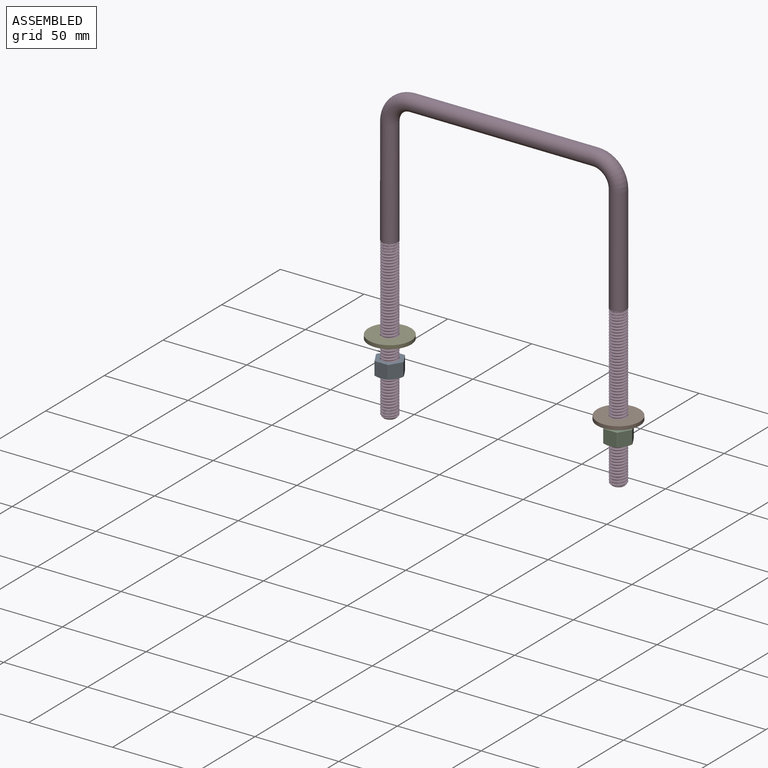
[diagram: assembled view]
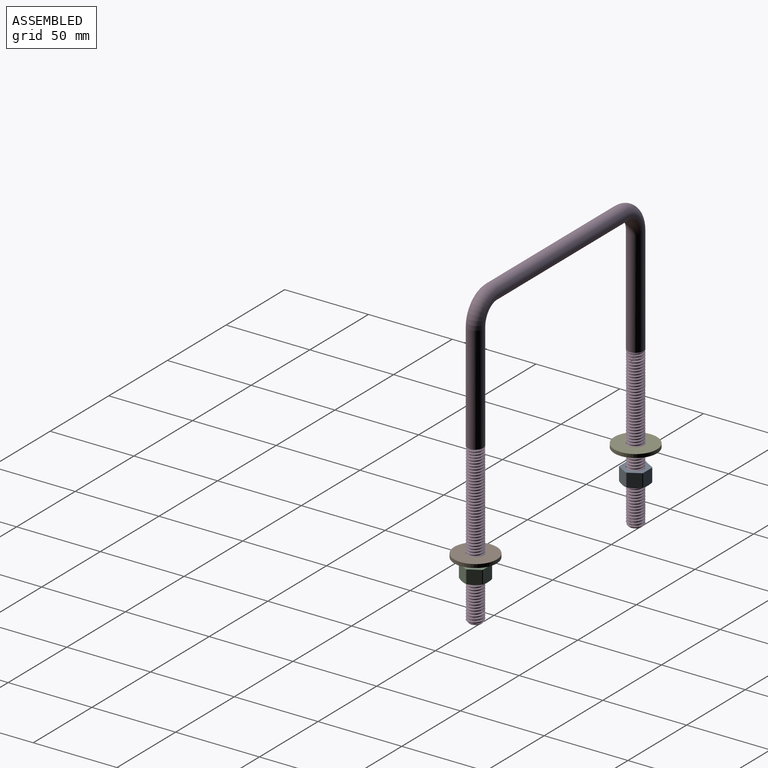
[diagram: assembled view, second angle]
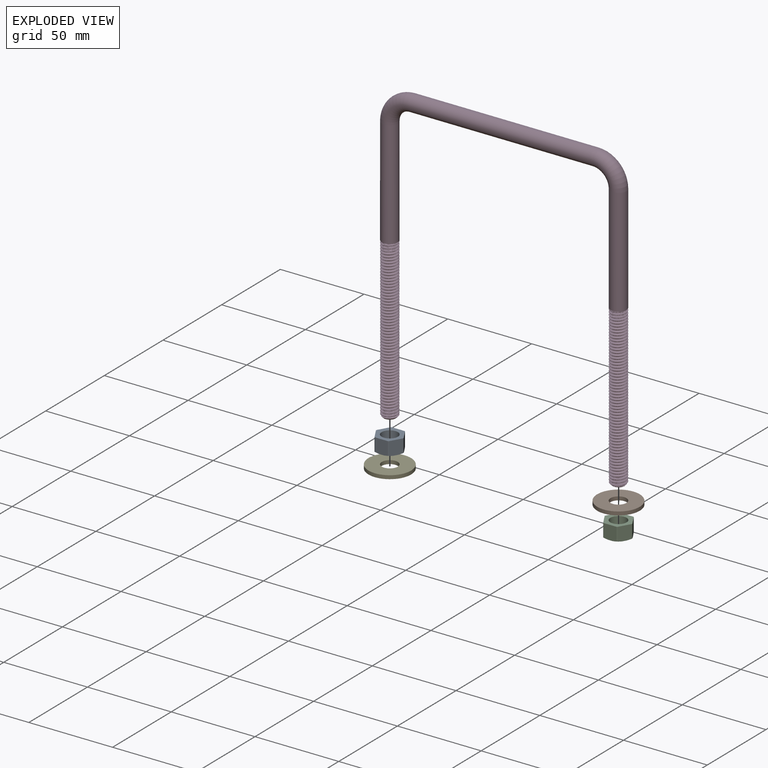
[diagram: exploded view]
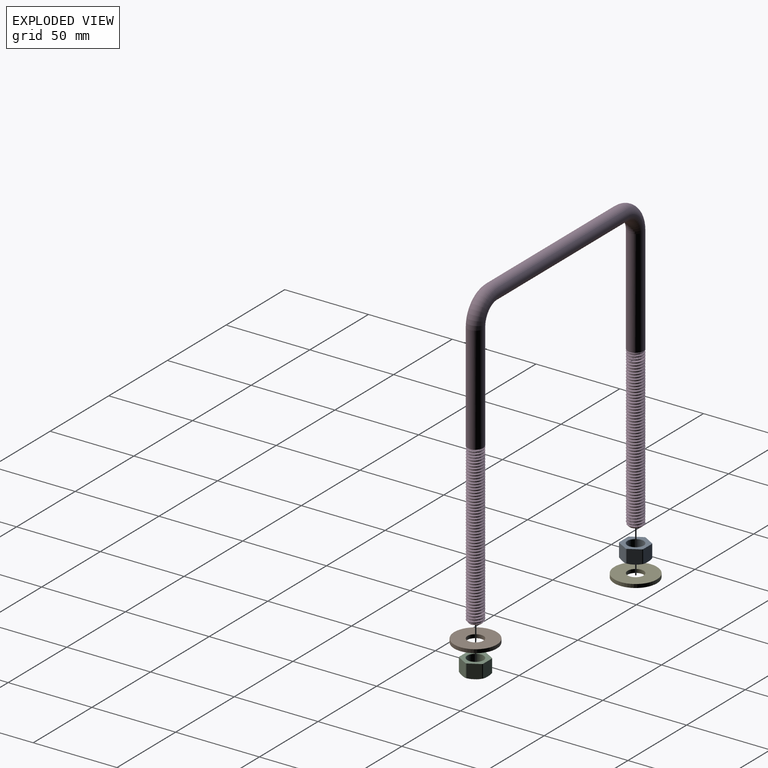
[diagram: exploded view, second angle]
ASSEMBLY  parts=5 mates=4
PART A: 23 faces, bbox 16.5x8.6x16.2 mm
  f0: cone r=4.79mm half-angle=45deg, axis (0,1,0), area 6.9mm2, adj f2,f3
  f1: cone r=4.95mm half-angle=45deg, axis (0,-1,0), area 6.9mm2, adj f2,f4
  f2: cylinder r=4.79mm len=9.58mm, axis (0,-1,0), area 241.2mm2, adj f0,f1
  f3: plane 14.53x14.3mm, normal (0,1,0), area 87.8mm2, adj f0,f5,f6,f7,f8,f9,f10,f12
  f4: plane 16.26x14.3mm, normal (0,-1,0), area 100.1mm2, adj f1,f5,f6,f7,f8,f9,f10,f11
  f5: plane 8.58x6.95mm, normal (0.87,0,-0.5), area 63.6mm2, adj f3,f4,f11,f12,f21,f22
  f6: plane 8.58x7.98mm, normal (0,0,-1), area 63.6mm2, adj f3,f4,f19,f20,f21,f22
  f7: plane 8.58x6.95mm, normal (-0.87,0,-0.5), area 63.6mm2, adj f3,f4,f17,f18,f19,f20
  f8: plane 8.58x6.95mm, normal (-0.87,0,0.5), area 63.6mm2, adj f3,f4,f15,f16,f17,f18
  f9: plane 8.58x7.98mm, normal (0,0,1), area 63.6mm2, adj f3,f4,f13,f14,f15,f16
  f10: plane 8.58x6.95mm, normal (0.87,0,0.5), area 63.6mm2, adj f3,f4,f11,f12,f13,f14
  f11: cylinder r=8.13mm len=7.93mm, axis (0,1,0), area 3.6mm2, adj f4,f5,f10,f12
  f12: cone r=7.27mm half-angle=65deg, axis (0,-1,0), area 2.7mm2, adj f3,f5,f10,f11
  f13: cylinder r=8.13mm len=7.93mm, axis (0,1,0), area 3.6mm2, adj f4,f9,f10,f14
  f14: cone r=7.27mm half-angle=65deg, axis (0,-1,0), area 2.7mm2, adj f3,f9,f10,f13
  f15: cylinder r=8.13mm len=7.93mm, axis (0,1,0), area 3.6mm2, adj f4,f8,f9,f16
  f16: cone r=7.27mm half-angle=65deg, axis (0,-1,0), area 2.7mm2, adj f3,f8,f9,f15
  f17: cylinder r=8.13mm len=7.93mm, axis (0,1,0), area 3.6mm2, adj f4,f7,f8,f18
  f18: cone r=7.27mm half-angle=65deg, axis (0,-1,0), area 2.7mm2, adj f3,f7,f8,f17
  f19: cylinder r=8.13mm len=7.93mm, axis (0,1,0), area 3.6mm2, adj f4,f6,f7,f20
  f20: cone r=7.27mm half-angle=65deg, axis (0,-1,0), area 2.7mm2, adj f3,f6,f7,f19
  f21: cone r=7.27mm half-angle=65deg, axis (0,-1,0), area 2.7mm2, adj f3,f5,f6,f22
  f22: cylinder r=8.13mm len=7.93mm, axis (0,1,0), area 3.6mm2, adj f4,f5,f6,f21
PART B: 4 faces, bbox 25.4x2.1x25.4 mm
  f0: cylinder r=4.79mm len=9.58mm, axis (0,1,0), area 64.2mm2, adj f2,f3
  f1: cylinder r=12.7mm len=25.4mm, axis (0,1,0), area 170.3mm2, adj f2,f3
  f2: plane 25.4x25.4mm, normal (0,-1,0), area 434.7mm2, adj f0,f1
  f3: plane 25.4x25.4mm, normal (0,1,0), area 434.7mm2, adj f0,f1
PART C: 23 faces, bbox 16.5x8.6x16.2 mm
  f0: cone r=4.79mm half-angle=45deg, axis (0,1,0), area 6.9mm2, adj f2,f3
  f1: cone r=4.95mm half-angle=45deg, axis (0,-1,0), area 6.9mm2, adj f2,f4
  f2: cylinder r=4.79mm len=9.58mm, axis (0,-1,0), area 241.2mm2, adj f0,f1
  f3: plane 14.53x14.3mm, normal (0,1,0), area 87.8mm2, adj f0,f5,f6,f7,f8,f9,f10,f12
  f4: plane 16.26x14.3mm, normal (0,-1,0), area 100.1mm2, adj f1,f5,f6,f7,f8,f9,f10,f11
  f5: plane 8.58x6.95mm, normal (-0.87,0,-0.5), area 63.6mm2, adj f3,f4,f11,f12,f21,f22
  f6: plane 8.58x7.98mm, normal (0,0,-1), area 63.6mm2, adj f3,f4,f19,f20,f21,f22
  f7: plane 8.58x6.95mm, normal (0.87,0,-0.5), area 63.6mm2, adj f3,f4,f17,f18,f19,f20
  f8: plane 8.58x6.95mm, normal (0.87,0,0.5), area 63.6mm2, adj f3,f4,f15,f16,f17,f18
  f9: plane 8.58x7.98mm, normal (0,0,1), area 63.6mm2, adj f3,f4,f13,f14,f15,f16
  f10: plane 8.58x6.95mm, normal (-0.87,0,0.5), area 63.6mm2, adj f3,f4,f11,f12,f13,f14
  f11: cylinder r=8.13mm len=7.93mm, axis (0,1,0), area 3.6mm2, adj f4,f5,f10,f12
  f12: cone r=7.27mm half-angle=65deg, axis (0,-1,0), area 2.7mm2, adj f3,f5,f10,f11
  f13: cylinder r=8.13mm len=7.93mm, axis (0,1,0), area 3.6mm2, adj f4,f9,f10,f14
  f14: cone r=7.27mm half-angle=65deg, axis (0,-1,0), area 2.7mm2, adj f3,f9,f10,f13
  f15: cylinder r=8.13mm len=7.93mm, axis (0,1,0), area 3.6mm2, adj f4,f8,f9,f16
  f16: cone r=7.27mm half-angle=65deg, axis (0,-1,0), area 2.7mm2, adj f3,f8,f9,f15
  f17: cylinder r=8.13mm len=7.93mm, axis (0,1,0), area 3.6mm2, adj f4,f7,f8,f18
  f18: cone r=7.27mm half-angle=65deg, axis (0,-1,0), area 2.7mm2, adj f3,f7,f8,f17
  f19: cylinder r=8.13mm len=7.93mm, axis (0,1,0), area 3.6mm2, adj f4,f6,f7,f20
  f20: cone r=7.27mm half-angle=65deg, axis (0,-1,0), area 2.7mm2, adj f3,f6,f7,f19
  f21: cone r=7.27mm half-angle=65deg, axis (0,-1,0), area 2.7mm2, adj f3,f5,f6,f22
  f22: cylinder r=8.13mm len=7.93mm, axis (0,1,0), area 3.6mm2, adj f4,f5,f6,f21
PART D: 166 faces, bbox 151.8x183.4x12.3 mm
  f0: torus R=13.65mm, axis (0,0,1), area 641.7mm2, adj f1,f97
  f1: cylinder r=4.76mm len=65.72mm, axis (0,1,0), area 1925.3mm2, adj f0,f2,f94,f95,f96
  f2: cylinder r=4.76mm len=9.53mm, axis (0,1,0), area 6.3mm2, adj f1,f3,f94,f96
  f3: cylinder r=4.76mm len=9.53mm, axis (0,1,0), area 6.3mm2, adj f2,f4,f93,f94
  f4: bspline ~11x9.53mm, area 13.9mm2, adj f3,f5
  f5: cylinder r=3.73mm len=95.09mm, axis (0,-1,0), area 408mm2, adj f4,f6,f64,f65,f66,f67,f68,f69
  f6: cone r=3.57mm half-angle=45deg, axis (0,-1,0), area 24mm2, adj f5,f7,f63,f64,f94
  f7: cylinder r=4.76mm len=8.1mm, axis (0,1,0), area 1.8mm2, adj f6,f8,f64,f94
  f8: cylinder r=4.76mm len=9.53mm, axis (0,1,0), area 5.9mm2, adj f7,f9,f64,f94
  f9: cylinder r=4.76mm len=9.53mm, axis (0,1,0), area 5.9mm2, adj f8,f10,f64,f94
  f10: cylinder r=4.76mm len=9.53mm, axis (0,1,0), area 5.9mm2, adj f9,f11,f64,f94
  f11: cylinder r=4.76mm len=9.53mm, axis (0,1,0), area 5.9mm2, adj f10,f12,f64,f94
  f12: cylinder r=4.76mm len=9.53mm, axis (0,1,0), area 5.9mm2, adj f11,f13,f64,f94
  f13: cylinder r=4.76mm len=9.53mm, axis (0,1,0), area 5.9mm2, adj f12,f14,f64,f94
  f14: cylinder r=4.76mm len=9.53mm, axis (0,1,0), area 5.9mm2, adj f13,f15,f64,f94
  f15: cylinder r=4.76mm len=9.53mm, axis (0,1,0), area 5.9mm2, adj f14,f16,f64,f94
  f16: cylinder r=4.76mm len=9.53mm, axis (0,1,0), area 5.9mm2, adj f15,f17,f64,f94
  f17: cylinder r=4.76mm len=9.53mm, axis (0,1,0), area 5.9mm2, adj f16,f18,f64,f94
  f18: cylinder r=4.76mm len=9.53mm, axis (0,1,0), area 5.9mm2, adj f17,f19,f64,f94
  f19: cylinder r=4.76mm len=9.53mm, axis (0,1,0), area 5.9mm2, adj f18,f20,f64,f94
  f20: cylinder r=4.76mm len=9.53mm, axis (0,1,0), area 5.9mm2, adj f19,f21,f64,f94
  f21: cylinder r=4.76mm len=9.53mm, axis (0,1,0), area 5.9mm2, adj f20,f22,f64,f94
  f22: cylinder r=4.76mm len=9.53mm, axis (0,1,0), area 5.9mm2, adj f21,f23,f64,f94
  f23: cylinder r=4.76mm len=9.53mm, axis (0,1,0), area 5.9mm2, adj f22,f24,f64,f94
  f24: cylinder r=4.76mm len=9.53mm, axis (0,1,0), area 5.9mm2, adj f23,f25,f64,f94
  f25: cylinder r=4.76mm len=9.53mm, axis (0,1,0), area 5.9mm2, adj f24,f26,f64,f94
  f26: cylinder r=4.76mm len=9.53mm, axis (0,1,0), area 5.9mm2, adj f25,f27,f64,f94
  f27: cylinder r=4.76mm len=9.53mm, axis (0,1,0), area 5.9mm2, adj f26,f28,f64,f94
  f28: cylinder r=4.76mm len=9.53mm, axis (0,1,0), area 5.9mm2, adj f27,f29,f64,f94
  f29: cylinder r=4.76mm len=9.53mm, axis (0,1,0), area 5.9mm2, adj f28,f30,f64,f94
  f30: cylinder r=4.76mm len=9.53mm, axis (0,1,0), area 5.9mm2, adj f29,f31,f64,f94
  f31: cylinder r=4.76mm len=9.53mm, axis (0,1,0), area 5.9mm2, adj f30,f32,f64,f94
  f32: cylinder r=4.76mm len=9.53mm, axis (0,1,0), area 5.9mm2, adj f31,f33,f64,f94
  f33: cylinder r=4.76mm len=9.53mm, axis (0,1,0), area 5.9mm2, adj f32,f34,f64,f94
  f34: cylinder r=4.76mm len=9.53mm, axis (0,1,0), area 5.9mm2, adj f33,f35,f64,f94
  f35: cylinder r=4.76mm len=9.53mm, axis (0,1,0), area 5.9mm2, adj f34,f36,f64,f94
  f36: cylinder r=4.76mm len=9.53mm, axis (0,1,0), area 6.3mm2, adj f35,f37,f65,f94
  f37: cylinder r=4.76mm len=9.53mm, axis (0,1,0), area 6.3mm2, adj f36,f38,f66,f94
  f38: cylinder r=4.76mm len=9.53mm, axis (0,1,0), area 6.3mm2, adj f37,f39,f67,f94
  f39: cylinder r=4.76mm len=9.53mm, axis (0,1,0), area 6.3mm2, adj f38,f40,f68,f94
  f40: cylinder r=4.76mm len=9.53mm, axis (0,1,0), area 6.3mm2, adj f39,f41,f69,f94
  f41: cylinder r=4.76mm len=9.53mm, axis (0,1,0), area 6.3mm2, adj f40,f42,f70,f94
  f42: cylinder r=4.76mm len=9.53mm, axis (0,1,0), area 6.3mm2, adj f41,f43,f71,f94
  f43: cylinder r=4.76mm len=9.53mm, axis (0,1,0), area 6.3mm2, adj f42,f44,f72,f94
  f44: cylinder r=4.76mm len=9.53mm, axis (0,1,0), area 6.3mm2, adj f43,f45,f73,f94
  f45: cylinder r=4.76mm len=9.53mm, axis (0,1,0), area 6.3mm2, adj f44,f46,f74,f94
  f46: cylinder r=4.76mm len=9.53mm, axis (0,1,0), area 6.3mm2, adj f45,f47,f75,f94
  f47: cylinder r=4.76mm len=9.53mm, axis (0,1,0), area 6.3mm2, adj f46,f48,f76,f94
  f48: cylinder r=4.76mm len=9.53mm, axis (0,1,0), area 6.3mm2, adj f47,f49,f77,f94
  f49: cylinder r=4.76mm len=9.53mm, axis (0,1,0), area 6.3mm2, adj f48,f50,f78,f94
  f50: cylinder r=4.76mm len=9.53mm, axis (0,1,0), area 6.3mm2, adj f49,f51,f79,f94
  f51: cylinder r=4.76mm len=9.53mm, axis (0,1,0), area 6.3mm2, adj f50,f52,f80,f94
  f52: cylinder r=4.76mm len=9.53mm, axis (0,1,0), area 6.3mm2, adj f51,f53,f81,f94
  f53: cylinder r=4.76mm len=9.53mm, axis (0,1,0), area 6.3mm2, adj f52,f54,f82,f94
  f54: cylinder r=4.76mm len=9.53mm, axis (0,1,0), area 6.3mm2, adj f53,f55,f83,f94
  f55: cylinder r=4.76mm len=9.53mm, axis (0,1,0), area 6.3mm2, adj f54,f56,f84,f94
  f56: cylinder r=4.76mm len=9.53mm, axis (0,1,0), area 6.3mm2, adj f55,f57,f85,f94
  f57: cylinder r=4.76mm len=9.53mm, axis (0,1,0), area 6.3mm2, adj f56,f58,f86,f94
  f58: cylinder r=4.76mm len=9.53mm, axis (0,1,0), area 6.3mm2, adj f57,f59,f87,f94
  f59: cylinder r=4.76mm len=9.53mm, axis (0,1,0), area 6.3mm2, adj f58,f60,f88,f94
  f60: cylinder r=4.76mm len=9.53mm, axis (0,1,0), area 6.3mm2, adj f59,f61,f89,f94
  f61: cylinder r=4.76mm len=9.53mm, axis (0,1,0), area 6.3mm2, adj f60,f62,f90,f94
  f62: cylinder r=4.76mm len=9.53mm, axis (0,1,0), area 6.3mm2, adj f61,f91,f93,f94
  f63: plane 7.14x7.14mm, normal (0,1,0), area 40.1mm2, adj f6
  f64: bspline ~49.18x8.4mm, area -14.6mm2, adj f5,f6,f7,f8,f9,f10,f11,f12
  f65: bspline ~8.37x8.34mm, area 13.9mm2, adj f5,f36
  f66: bspline ~7.46x7.45mm, area 11mm2, adj f5,f37
  f67: bspline ~8.37x8.34mm, area 13.9mm2, adj f5,f38
  f68: bspline ~7.46x7.45mm, area 11mm2, adj f5,f39
  f69: bspline ~8.37x8.34mm, area 13.9mm2, adj f5,f40
  f70: bspline ~7.46x7.45mm, area 11mm2, adj f5,f41
  f71: bspline ~8.37x8.34mm, area 13.9mm2, adj f5,f42
  f72: bspline ~7.46x7.45mm, area 11mm2, adj f5,f43
  f73: bspline ~11x9.53mm, area 13.9mm2, adj f5,f44
  f74: bspline ~7.46x7.45mm, area 11mm2, adj f5,f45
  f75: bspline ~11x9.53mm, area 13.9mm2, adj f5,f46
  f76: bspline ~7.46x7.45mm, area 11mm2, adj f5,f47
  f77: bspline ~11x9.53mm, area 13.9mm2, adj f5,f48
  f78: bspline ~7.46x7.45mm, area 11mm2, adj f5,f49
  f79: bspline ~11x9.53mm, area 13.9mm2, adj f5,f50
  f80: bspline ~7.46x7.45mm, area 11mm2, adj f5,f51
  f81: bspline ~11x9.53mm, area 13.9mm2, adj f5,f52
  f82: bspline ~7.46x7.45mm, area 11mm2, adj f5,f53
  f83: bspline ~11x9.53mm, area 13.9mm2, adj f5,f54
  f84: bspline ~7.46x7.45mm, area 11mm2, adj f5,f55
  f85: bspline ~11x9.53mm, area 13.9mm2, adj f5,f56
  f86: bspline ~7.46x7.45mm, area 11mm2, adj f5,f57
  f87: bspline ~11x9.53mm, area 13.9mm2, adj f5,f58
  f88: bspline ~7.46x7.45mm, area 11mm2, adj f5,f59
  f89: bspline ~11x9.53mm, area 13.9mm2, adj f5,f60
  f90: bspline ~7.46x7.45mm, area 11mm2, adj f5,f61
  f91: bspline ~11x9.53mm, area 13.9mm2, adj f5,f62
  f92: bspline ~7.46x7.45mm, area 11mm2, adj f5,f93
  f93: cylinder r=4.76mm len=9.53mm, axis (0,1,0), area 6.3mm2, adj f3,f62,f92,f94
  f94: bspline ~96.91x11mm, area 1898.1mm2, adj f1,f2,f3,f5,f6,f7,f8,f9
  f95: plane 12.27x12.27mm, normal (0,1,0), area 20mm2, adj f1,f5,f94,f96
  f96: bspline ~9.54x9.53mm, area 37.9mm2, adj f1,f2,f5,f95
  f97: cylinder r=4.76mm len=109.22mm, axis (1,0,0), area 3268.3mm2, adj f0,f98
  f98: torus R=13.65mm, axis (0,0,1), area 641.7mm2, adj f97,f99
  f99: cylinder r=4.76mm len=64.53mm, axis (0,1,0), area 1920.3mm2, adj f98,f100,f163,f164,f165
  f100: cylinder r=4.76mm len=9.53mm, axis (0,1,0), area 5.9mm2, adj f99,f101,f163,f165
  f101: cylinder r=4.76mm len=9.53mm, axis (0,1,0), area 5.9mm2, adj f100,f102,f163,f165
  f102: cylinder r=4.76mm len=9.53mm, axis (0,1,0), area 5.9mm2, adj f101,f103,f163,f165
  f103: cylinder r=4.76mm len=9.53mm, axis (0,1,0), area 5.9mm2, adj f102,f104,f163,f165
  f104: cylinder r=4.76mm len=9.53mm, axis (0,1,0), area 5.9mm2, adj f103,f105,f163,f165
  f105: cylinder r=4.76mm len=9.53mm, axis (0,1,0), area 5.9mm2, adj f104,f106,f163,f165
  f106: cylinder r=4.76mm len=9.53mm, axis (0,1,0), area 5.9mm2, adj f105,f107,f163,f165
  f107: cylinder r=4.76mm len=9.53mm, axis (0,1,0), area 5.9mm2, adj f106,f108,f163,f165
  f108: cylinder r=4.76mm len=9.53mm, axis (0,1,0), area 5.9mm2, adj f107,f109,f163,f165
  f109: cylinder r=4.76mm len=9.53mm, axis (0,1,0), area 5.9mm2, adj f108,f110,f163,f165
  f110: cylinder r=4.76mm len=9.53mm, axis (0,1,0), area 5.9mm2, adj f109,f111,f163,f165
  f111: cylinder r=4.76mm len=9.53mm, axis (0,1,0), area 5.9mm2, adj f110,f112,f163,f165
  f112: cylinder r=4.76mm len=9.53mm, axis (0,1,0), area 5.9mm2, adj f111,f113,f163,f165
  f113: cylinder r=4.76mm len=9.53mm, axis (0,1,0), area 5.9mm2, adj f112,f114,f163,f165
  f114: cylinder r=4.76mm len=9.53mm, axis (0,1,0), area 5.9mm2, adj f113,f115,f163,f165
  f115: cylinder r=4.76mm len=9.53mm, axis (0,1,0), area 5.9mm2, adj f114,f116,f163,f165
  f116: cylinder r=4.76mm len=9.53mm, axis (0,1,0), area 5.9mm2, adj f115,f117,f163,f165
  f117: cylinder r=4.76mm len=9.53mm, axis (0,1,0), area 5.9mm2, adj f116,f118,f163,f165
  f118: cylinder r=4.76mm len=9.53mm, axis (0,1,0), area 5.9mm2, adj f117,f119,f163,f165
  f119: cylinder r=4.76mm len=9.53mm, axis (0,1,0), area 5.9mm2, adj f118,f120,f163,f165
  f120: cylinder r=4.76mm len=9.53mm, axis (0,1,0), area 5.9mm2, adj f119,f121,f163,f165
  f121: cylinder r=4.76mm len=9.53mm, axis (0,1,0), area 5.9mm2, adj f120,f122,f163,f165
  f122: cylinder r=4.76mm len=9.53mm, axis (0,1,0), area 5.9mm2, adj f121,f123,f163,f165
  f123: cylinder r=4.76mm len=9.53mm, axis (0,1,0), area 5.9mm2, adj f122,f124,f163,f165
  f124: cylinder r=4.76mm len=9.53mm, axis (0,1,0), area 5.9mm2, adj f123,f125,f163,f165
  f125: cylinder r=4.76mm len=9.53mm, axis (0,1,0), area 5.9mm2, adj f124,f126,f163,f165
  f126: cylinder r=4.76mm len=9.53mm, axis (0,1,0), area 5.9mm2, adj f125,f127,f163,f165
  f127: cylinder r=4.76mm len=9.53mm, axis (0,1,0), area 5.9mm2, adj f126,f128,f163,f165
  f128: cylinder r=4.76mm len=9.53mm, axis (0,1,0), area 5.9mm2, adj f127,f129,f163,f165
  f129: cylinder r=4.76mm len=9.53mm, axis (0,1,0), area 5.9mm2, adj f128,f130,f163,f165
  f130: cylinder r=4.76mm len=9.53mm, axis (0,1,0), area 5.9mm2, adj f129,f131,f163,f165
  f131: cylinder r=4.76mm len=9.53mm, axis (0,1,0), area 5.9mm2, adj f130,f132,f163,f165
  f132: cylinder r=4.76mm len=9.53mm, axis (0,1,0), area 5.9mm2, adj f131,f133,f163,f165
  f133: cylinder r=4.76mm len=9.53mm, axis (0,1,0), area 5.9mm2, adj f132,f134,f163,f165
  f134: cylinder r=4.76mm len=9.53mm, axis (0,1,0), area 5.9mm2, adj f133,f135,f163,f165
  f135: cylinder r=4.76mm len=9.53mm, axis (0,1,0), area 5.9mm2, adj f134,f136,f163,f165
  f136: cylinder r=4.76mm len=9.53mm, axis (0,1,0), area 5.9mm2, adj f135,f137,f163,f165
  f137: cylinder r=4.76mm len=9.53mm, axis (0,1,0), area 5.9mm2, adj f136,f138,f163,f165
  f138: cylinder r=4.76mm len=9.53mm, axis (0,1,0), area 5.9mm2, adj f137,f139,f163,f165
  f139: cylinder r=4.76mm len=9.53mm, axis (0,1,0), area 5.9mm2, adj f138,f140,f163,f165
  f140: cylinder r=4.76mm len=9.53mm, axis (0,1,0), area 5.9mm2, adj f139,f141,f163,f165
  f141: cylinder r=4.76mm len=9.53mm, axis (0,1,0), area 5.9mm2, adj f140,f142,f163,f165
  f142: cylinder r=4.76mm len=9.53mm, axis (0,1,0), area 5.9mm2, adj f141,f143,f163,f165
  f143: cylinder r=4.76mm len=9.53mm, axis (0,1,0), area 5.9mm2, adj f142,f144,f163,f165
  f144: cylinder r=4.76mm len=9.53mm, axis (0,1,0), area 5.9mm2, adj f143,f145,f163,f165
  f145: cylinder r=4.76mm len=9.53mm, axis (0,1,0), area 5.9mm2, adj f144,f146,f163,f165
  f146: cylinder r=4.76mm len=9.53mm, axis (0,1,0), area 5.9mm2, adj f145,f147,f163,f165
  f147: cylinder r=4.76mm len=9.53mm, axis (0,1,0), area 5.9mm2, adj f146,f148,f163,f165
  f148: cylinder r=4.76mm len=9.53mm, axis (0,1,0), area 5.9mm2, adj f147,f149,f163,f165
  f149: cylinder r=4.76mm len=9.53mm, axis (0,1,0), area 5.9mm2, adj f148,f150,f163,f165
  f150: cylinder r=4.76mm len=9.53mm, axis (0,1,0), area 5.9mm2, adj f149,f151,f163,f165
  f151: cylinder r=4.76mm len=9.53mm, axis (0,1,0), area 5.9mm2, adj f150,f152,f163,f165
  f152: cylinder r=4.76mm len=9.53mm, axis (0,1,0), area 5.9mm2, adj f151,f153,f163,f165
  f153: cylinder r=4.76mm len=9.53mm, axis (0,1,0), area 5.9mm2, adj f152,f154,f163,f165
  f154: cylinder r=4.76mm len=9.53mm, axis (0,1,0), area 5.9mm2, adj f153,f155,f163,f165
  f155: cylinder r=4.76mm len=9.53mm, axis (0,1,0), area 5.9mm2, adj f154,f156,f163,f165
  f156: cylinder r=4.76mm len=9.53mm, axis (0,1,0), area 5.9mm2, adj f155,f157,f163,f165
  f157: cylinder r=4.76mm len=9.53mm, axis (0,1,0), area 5.9mm2, adj f156,f158,f163,f165
  f158: cylinder r=4.76mm len=9.53mm, axis (0,1,0), area 5.9mm2, adj f157,f159,f163,f165
  f159: cylinder r=4.76mm len=3.4mm, axis (0,1,0), area 0.4mm2, adj f158,f160,f163
  f160: cone r=3.57mm half-angle=45deg, axis (0,-1,0), area 28.5mm2, adj f159,f161,f162,f163,f165
  f161: plane 7.14x7.14mm, normal (0,1,0), area 40.1mm2, adj f160
  f162: cylinder r=3.73mm len=95.09mm, axis (0,-1,0), area 1788.4mm2, adj f160,f163,f164,f165
  f163: bspline ~97.23x9.52mm, area 1893.1mm2, adj f99,f100,f101,f102,f103,f104,f105,f106
  f164: plane 10.15x10.15mm, normal (0,1,0), area 14.2mm2, adj f99,f162,f163,f165
  f165: bspline ~95.69x9.42mm, area 1894.8mm2, adj f99,f100,f101,f102,f103,f104,f105,f106
PART E: 4 faces, bbox 25.4x2.1x25.4 mm
  f0: cylinder r=4.79mm len=9.58mm, axis (0,1,0), area 64.2mm2, adj f2,f3
  f1: cylinder r=12.7mm len=25.4mm, axis (0,1,0), area 170.3mm2, adj f2,f3
  f2: plane 25.4x25.4mm, normal (0,-1,0), area 434.7mm2, adj f0,f1
  f3: plane 25.4x25.4mm, normal (0,1,0), area 434.7mm2, adj f0,f1
PLACE A rot(axis=(-1,0,0),90deg) t=(-1.38,35.83,-70.43)mm
PLACE B rot(axis=(-1,0,0),90deg) t=(-1.38,35.83,-67.01)mm
PLACE C rot(axis=(-1,0,0),90deg) t=(-1.38,35.83,-70.47)mm
PLACE D rot(axis=(-1,0,0),90deg) t=(-1.38,35.83,-54.4)mm
PLACE E rot(axis=(-1,0,0),90deg) t=(-1.38,35.83,-59.79)mm
MATE cylindrical B.f0 <-> D.f99  axis (0,0,-1) through (66.88,35.83,-19.38)mm
MATE cylindrical A.f0 <-> D.f1  axis (0,0,-1) through (-69.65,35.83,-31.14)mm
MATE cylindrical C.f0 <-> D.f99  axis (0,0,-1) through (66.88,35.83,-31.17)mm
MATE cylindrical E.f0 <-> D.f1  axis (0,0,-1) through (-69.65,35.83,-12.16)mm
